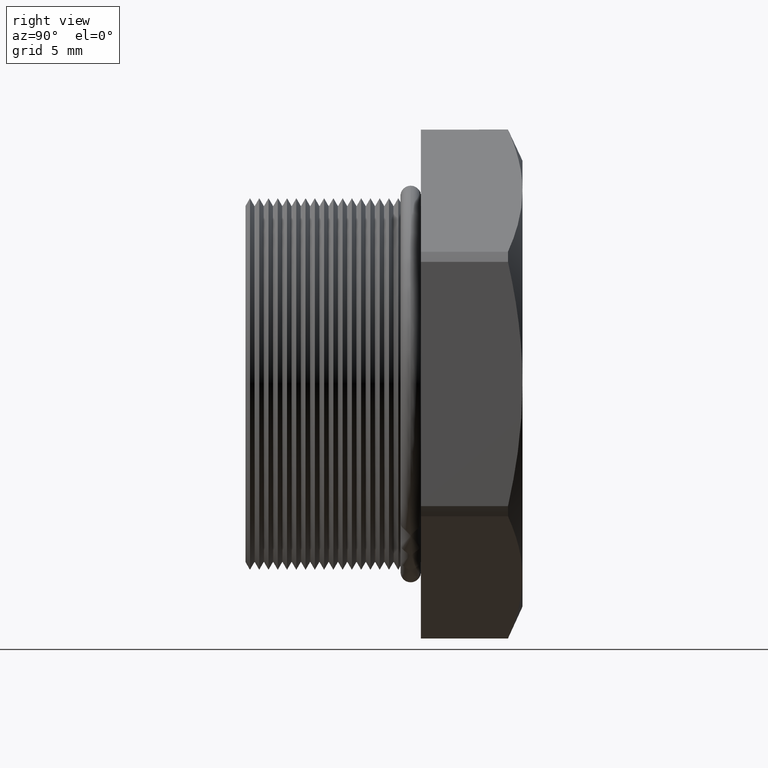
[diagram: clean part render]
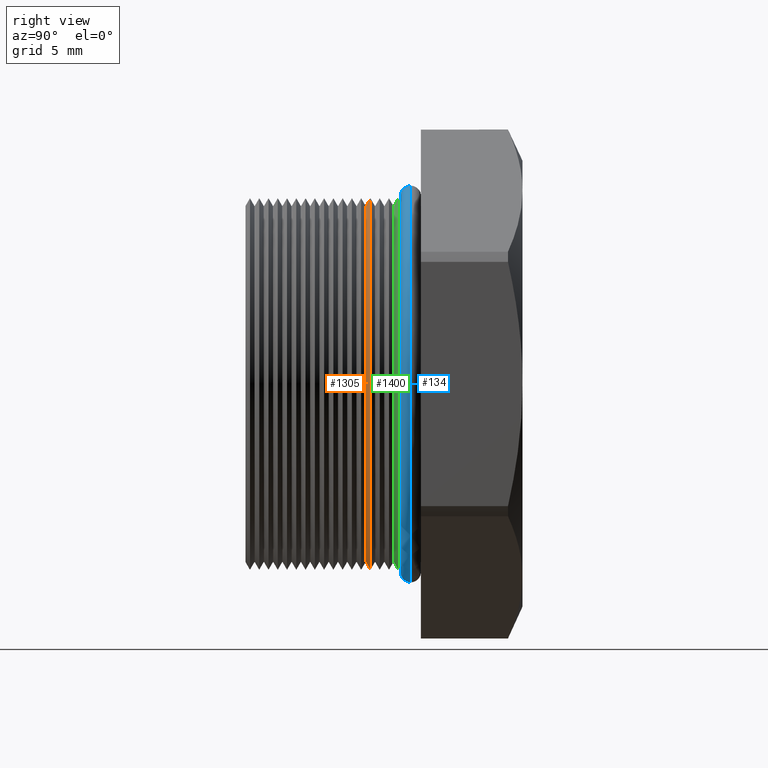
[diagram: same view with three faces highlighted in distinct colors, each labeled with its STEP entity id]
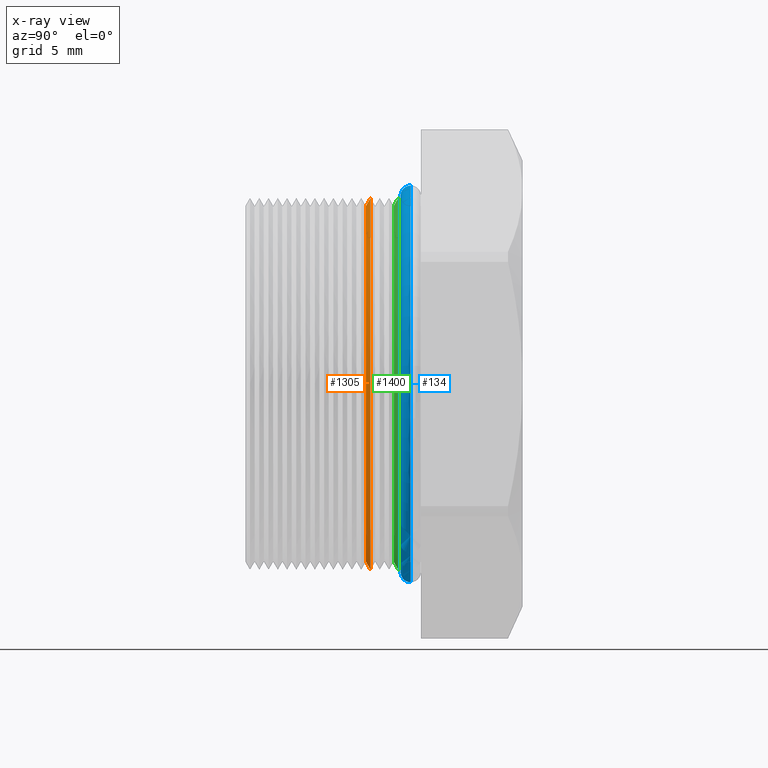
[diagram: x-ray of the same camera — body ghosted, the three highlighted faces saturated]
A machine part, right view with three faces highlighted in distinct colors.
The next image is the same camera in x-ray (body ghosted, the three faces saturated) — at least one of them is partly hidden behind the body in this view.
Their STEP definitions:

[orange] entity #1305 — the highlighted conical surface has half-angle 60 deg.
#1305 = ADVANCED_FACE ( 'NONE', ( #5074 ), #5073, .T. ) ;
#1306 = ORIENTED_EDGE ( 'NONE', *, *, #1307, .T. ) ;
#1307 = EDGE_CURVE ( 'NONE', #1308, #1309, #5072, .T. ) ;
#1308 = VERTEX_POINT ( 'NONE', #5063 ) ;
#1309 = VERTEX_POINT ( 'NONE', #5062 ) ;
#1310 = ORIENTED_EDGE ( 'NONE', *, *, #1312, .T. ) ;
#1312 = EDGE_CURVE ( 'NONE', #1309, #1313, #5061, .T. ) ;
#1313 = VERTEX_POINT ( 'NONE', #5118 ) ;
#1314 = ORIENTED_EDGE ( 'NONE', *, *, #1315, .F. ) ;
#1315 = EDGE_CURVE ( 'NONE', #1316, #1313, #5117, .T. ) ;
#1316 = VERTEX_POINT ( 'NONE', #5112 ) ;
#1317 = ORIENTED_EDGE ( 'NONE', *, *, #1374, .F. ) ;
#1331 = EDGE_LOOP ( 'NONE', ( #1306, #1310, #1314, #1317 ) ) ;
#1374 = EDGE_CURVE ( 'NONE', #1308, #1316, #5204, .T. ) ;
#5061 = LINE ( 'NONE', #5121, #5120 ) ;
#5062 = CARTESIAN_POINT ( 'NONE',  ( 0.0000000000000000000, 0.1304025363558870600, -0.3150000000000000000 ) ) ;
#5063 = CARTESIAN_POINT ( 'NONE',  ( 3.857637417314162700E-017, 0.1304025363558870600, 0.3150000000000000000 ) ) ;
#5064 = DIRECTION ( 'NONE',  ( 0.0000000000000000000, 0.0000000000000000000, 1.000000000000000000 ) ) ;
#5065 = DIRECTION ( 'NONE',  ( -0.0000000000000000000, 1.000000000000000000, -0.0000000000000000000 ) ) ;
#5066 = CARTESIAN_POINT ( 'NONE',  ( 0.0000000000000000000, 0.1304025363558870600, 0.0000000000000000000 ) ) ;
#5067 = AXIS2_PLACEMENT_3D ( 'NONE', #5066, #5065, #5064 ) ;
#5068 = DIRECTION ( 'NONE',  ( 0.0000000000000000000, 0.0000000000000000000, 1.000000000000000000 ) ) ;
#5069 = DIRECTION ( 'NONE',  ( -0.0000000000000000000, 1.000000000000000000, -0.0000000000000000000 ) ) ;
#5070 = CARTESIAN_POINT ( 'NONE',  ( 0.0000000000000000000, 0.1383548905829480000, 0.0000000000000000000 ) ) ;
#5071 = AXIS2_PLACEMENT_3D ( 'NONE', #5070, #5069, #5068 ) ;
#5072 = CIRCLE ( 'NONE', #5067, 0.3150000000000000000 ) ;
#5073 = CONICAL_SURFACE ( 'NONE', #5071, 0.3287738815610546400, 1.047197551196596700 ) ;
#5074 = FACE_OUTER_BOUND ( 'NONE', #1331, .T. ) ;
#5112 = CARTESIAN_POINT ( 'NONE',  ( 4.026318816969966200E-017, 0.1383548905829480000, 0.3287738815610546400 ) ) ;
#5113 = DIRECTION ( 'NONE',  ( 0.0000000000000000000, 0.0000000000000000000, 1.000000000000000000 ) ) ;
#5114 = DIRECTION ( 'NONE',  ( -0.0000000000000000000, 1.000000000000000000, -0.0000000000000000000 ) ) ;
#5115 = CARTESIAN_POINT ( 'NONE',  ( 0.0000000000000000000, 0.1383548905829480000, 0.0000000000000000000 ) ) ;
#5116 = AXIS2_PLACEMENT_3D ( 'NONE', #5115, #5114, #5113 ) ;
#5117 = CIRCLE ( 'NONE', #5116, 0.3287738815610546400 ) ;
#5118 = CARTESIAN_POINT ( 'NONE',  ( 0.0000000000000000000, 0.1383548905829480000, -0.3287738815610546400 ) ) ;
#5119 = DIRECTION ( 'NONE',  ( 1.060575238724906300E-016, 0.5000000000000008900, -0.8660254037844380400 ) ) ;
#5120 = VECTOR ( 'NONE', #5119, 39.37007874015748100 ) ;
#5121 = CARTESIAN_POINT ( 'NONE',  ( 4.026318816969965600E-017, 0.1383548905829480000, -0.3287738815610546400 ) ) ;
#5201 = DIRECTION ( 'NONE',  ( 0.0000000000000000000, 0.5000000000000008900, 0.8660254037844380400 ) ) ;
#5202 = VECTOR ( 'NONE', #5201, 39.37007874015748100 ) ;
#5203 = CARTESIAN_POINT ( 'NONE',  ( 0.0000000000000000000, 0.1383548905829480000, 0.3287738815610546400 ) ) ;
#5204 = LINE ( 'NONE', #5203, #5202 ) ;

[blue] entity #134 — the highlighted toroidal blend (fillet) surface has major radius 8.4582 mm and minor (blend) radius 0.4572 mm.
#61 = EDGE_CURVE ( 'NONE', #74, #71, #2929, .T. ) ;
#62 = ORIENTED_EDGE ( 'NONE', *, *, #133, .T. ) ;
#63 = ORIENTED_EDGE ( 'NONE', *, *, #64, .T. ) ;
#64 = EDGE_CURVE ( 'NONE', #68, #67, #2924, .T. ) ;
#67 = VERTEX_POINT ( 'NONE', #2913 ) ;
#68 = VERTEX_POINT ( 'NONE', #2912 ) ;
#71 = VERTEX_POINT ( 'NONE', #2970 ) ;
#74 = VERTEX_POINT ( 'NONE', #2964 ) ;
#81 = EDGE_CURVE ( 'NONE', #71, #67, #2956, .T. ) ;
#133 = EDGE_CURVE ( 'NONE', #74, #68, #3044, .T. ) ;
#134 = ADVANCED_FACE ( 'NONE', ( #3039 ), #3038, .T. ) ;
#135 = EDGE_LOOP ( 'NONE', ( #136, #137, #62, #63 ) ) ;
#136 = ORIENTED_EDGE ( 'NONE', *, *, #81, .F. ) ;
#137 = ORIENTED_EDGE ( 'NONE', *, *, #61, .F. ) ;
#2912 = CARTESIAN_POINT ( 'NONE',  ( 3.857637417314162100E-017, 0.2095548905829479900, -0.3150000000000000000 ) ) ;
#2913 = CARTESIAN_POINT ( 'NONE',  ( 4.298510265007209500E-017, 0.2095548905829479900, -0.3509999999999999800 ) ) ;
#2920 = DIRECTION ( 'NONE',  ( 1.224646799147354900E-016, 0.0000000000000000000, -1.000000000000000000 ) ) ;
#2921 = DIRECTION ( 'NONE',  ( 1.000000000000000000, 0.0000000000000000000, 1.224646799147353200E-016 ) ) ;
#2922 = CARTESIAN_POINT ( 'NONE',  ( 4.078073841160685800E-017, 0.2095548905829479900, -0.3329999999999999600 ) ) ;
#2923 = AXIS2_PLACEMENT_3D ( 'NONE', #2922, #2921, #2920 ) ;
#2924 = CIRCLE ( 'NONE', #2923, 0.01799999999999998500 ) ;
#2925 = DIRECTION ( 'NONE',  ( 0.0000000000000000000, 0.0000000000000000000, 1.000000000000000000 ) ) ;
#2926 = DIRECTION ( 'NONE',  ( -1.000000000000000000, 0.0000000000000000000, 0.0000000000000000000 ) ) ;
#2927 = CARTESIAN_POINT ( 'NONE',  ( 0.0000000000000000000, 0.2095548905829479900, 0.3329999999999999600 ) ) ;
#2928 = AXIS2_PLACEMENT_3D ( 'NONE', #2927, #2926, #2925 ) ;
#2929 = CIRCLE ( 'NONE', #2928, 0.01799999999999998500 ) ;
#2948 = DIRECTION ( 'NONE',  ( 0.0000000000000000000, 0.0000000000000000000, 1.000000000000000000 ) ) ;
#2949 = DIRECTION ( 'NONE',  ( -0.0000000000000000000, 1.000000000000000000, -0.0000000000000000000 ) ) ;
#2950 = CARTESIAN_POINT ( 'NONE',  ( 0.0000000000000000000, 0.2095548905829479900, 0.0000000000000000000 ) ) ;
#2951 = AXIS2_PLACEMENT_3D ( 'NONE', #2950, #2949, #2948 ) ;
#2956 = CIRCLE ( 'NONE', #2951, 0.3509999999999999800 ) ;
#2964 = CARTESIAN_POINT ( 'NONE',  ( 0.0000000000000000000, 0.2095548905829479900, 0.3150000000000000000 ) ) ;
#2970 = CARTESIAN_POINT ( 'NONE',  ( 0.0000000000000000000, 0.2095548905829479900, 0.3509999999999999800 ) ) ;
#3035 = DIRECTION ( 'NONE',  ( -0.0000000000000000000, 1.000000000000000000, -0.0000000000000000000 ) ) ;
#3036 = CARTESIAN_POINT ( 'NONE',  ( 0.0000000000000000000, 0.2095548905829479900, 0.0000000000000000000 ) ) ;
#3037 = AXIS2_PLACEMENT_3D ( 'NONE', #3036, #3035, #3096 ) ;
#3038 = TOROIDAL_SURFACE ( 'NONE', #3037, 0.3329999999999999600, 0.01799999999999998800 ) ;
#3039 = FACE_OUTER_BOUND ( 'NONE', #135, .T. ) ;
#3040 = DIRECTION ( 'NONE',  ( 0.0000000000000000000, 0.0000000000000000000, 1.000000000000000000 ) ) ;
#3041 = DIRECTION ( 'NONE',  ( -0.0000000000000000000, 1.000000000000000000, -0.0000000000000000000 ) ) ;
#3042 = CARTESIAN_POINT ( 'NONE',  ( 0.0000000000000000000, 0.2095548905829479900, 0.0000000000000000000 ) ) ;
#3043 = AXIS2_PLACEMENT_3D ( 'NONE', #3042, #3041, #3040 ) ;
#3044 = CIRCLE ( 'NONE', #3043, 0.3150000000000000000 ) ;
#3096 = DIRECTION ( 'NONE',  ( 0.0000000000000000000, 0.0000000000000000000, 1.000000000000000000 ) ) ;

[green] entity #1400 — the highlighted conical surface has half-angle 60 deg.
#1381 = VERTEX_POINT ( 'NONE', #5192 ) ;
#1382 = ORIENTED_EDGE ( 'NONE', *, *, #1383, .F. ) ;
#1383 = EDGE_CURVE ( 'NONE', #1404, #1381, #5187, .T. ) ;
#1400 = ADVANCED_FACE ( 'NONE', ( #5276 ), #5275, .T. ) ;
#1401 = EDGE_LOOP ( 'NONE', ( #1402, #1406, #1409, #1382 ) ) ;
#1402 = ORIENTED_EDGE ( 'NONE', *, *, #1403, .T. ) ;
#1403 = EDGE_CURVE ( 'NONE', #1404, #1405, #5274, .T. ) ;
#1404 = VERTEX_POINT ( 'NONE', #5265 ) ;
#1405 = VERTEX_POINT ( 'NONE', #5264 ) ;
#1406 = ORIENTED_EDGE ( 'NONE', *, *, #1407, .T. ) ;
#1407 = EDGE_CURVE ( 'NONE', #1405, #1408, #5263, .T. ) ;
#1408 = VERTEX_POINT ( 'NONE', #5259 ) ;
#1409 = ORIENTED_EDGE ( 'NONE', *, *, #1410, .F. ) ;
#1410 = EDGE_CURVE ( 'NONE', #1381, #1408, #5258, .T. ) ;
#5187 = LINE ( 'NONE', #5247, #5246 ) ;
#5192 = CARTESIAN_POINT ( 'NONE',  ( 4.026318816969966200E-017, 0.1875548905829480000, 0.3287738815610546400 ) ) ;
#5245 = DIRECTION ( 'NONE',  ( 0.0000000000000000000, 0.5000000000000008900, 0.8660254037844380400 ) ) ;
#5246 = VECTOR ( 'NONE', #5245, 39.37007874015748100 ) ;
#5247 = CARTESIAN_POINT ( 'NONE',  ( 0.0000000000000000000, 0.1875548905829480000, 0.3287738815610546400 ) ) ;
#5254 = DIRECTION ( 'NONE',  ( 0.0000000000000000000, 0.0000000000000000000, 1.000000000000000000 ) ) ;
#5255 = DIRECTION ( 'NONE',  ( -0.0000000000000000000, 1.000000000000000000, -0.0000000000000000000 ) ) ;
#5256 = CARTESIAN_POINT ( 'NONE',  ( 0.0000000000000000000, 0.1875548905829480000, 0.0000000000000000000 ) ) ;
#5257 = AXIS2_PLACEMENT_3D ( 'NONE', #5256, #5255, #5254 ) ;
#5258 = CIRCLE ( 'NONE', #5257, 0.3287738815610546400 ) ;
#5259 = CARTESIAN_POINT ( 'NONE',  ( 0.0000000000000000000, 0.1875548905829480000, -0.3287738815610546400 ) ) ;
#5260 = DIRECTION ( 'NONE',  ( 1.060575238724906300E-016, 0.5000000000000008900, -0.8660254037844380400 ) ) ;
#5261 = VECTOR ( 'NONE', #5260, 39.37007874015748100 ) ;
#5262 = CARTESIAN_POINT ( 'NONE',  ( 4.026318816969965600E-017, 0.1875548905829480000, -0.3287738815610546400 ) ) ;
#5263 = LINE ( 'NONE', #5262, #5261 ) ;
#5264 = CARTESIAN_POINT ( 'NONE',  ( 0.0000000000000000000, 0.1796025363558870500, -0.3150000000000000000 ) ) ;
#5265 = CARTESIAN_POINT ( 'NONE',  ( 3.857637417314162700E-017, 0.1796025363558870500, 0.3150000000000000000 ) ) ;
#5266 = DIRECTION ( 'NONE',  ( 0.0000000000000000000, 0.0000000000000000000, 1.000000000000000000 ) ) ;
#5267 = DIRECTION ( 'NONE',  ( -0.0000000000000000000, 1.000000000000000000, -0.0000000000000000000 ) ) ;
#5268 = CARTESIAN_POINT ( 'NONE',  ( 0.0000000000000000000, 0.1796025363558870500, 0.0000000000000000000 ) ) ;
#5269 = AXIS2_PLACEMENT_3D ( 'NONE', #5268, #5267, #5266 ) ;
#5270 = DIRECTION ( 'NONE',  ( 0.0000000000000000000, 0.0000000000000000000, 1.000000000000000000 ) ) ;
#5271 = DIRECTION ( 'NONE',  ( -0.0000000000000000000, 1.000000000000000000, -0.0000000000000000000 ) ) ;
#5272 = CARTESIAN_POINT ( 'NONE',  ( 0.0000000000000000000, 0.1875548905829480000, 0.0000000000000000000 ) ) ;
#5273 = AXIS2_PLACEMENT_3D ( 'NONE', #5272, #5271, #5270 ) ;
#5274 = CIRCLE ( 'NONE', #5269, 0.3150000000000000000 ) ;
#5275 = CONICAL_SURFACE ( 'NONE', #5273, 0.3287738815610546400, 1.047197551196596700 ) ;
#5276 = FACE_OUTER_BOUND ( 'NONE', #1401, .T. ) ;